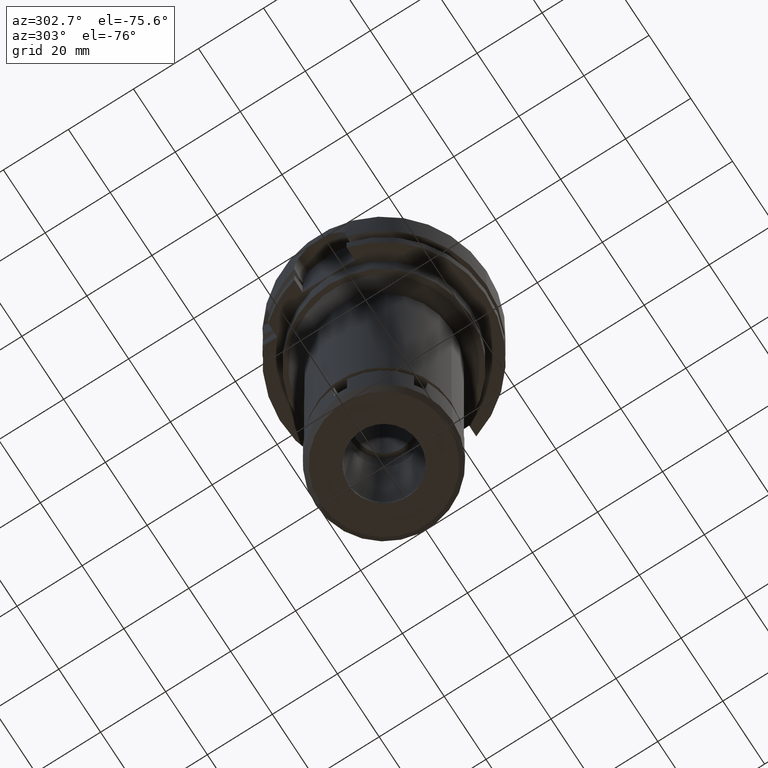
[diagram: clean part render]
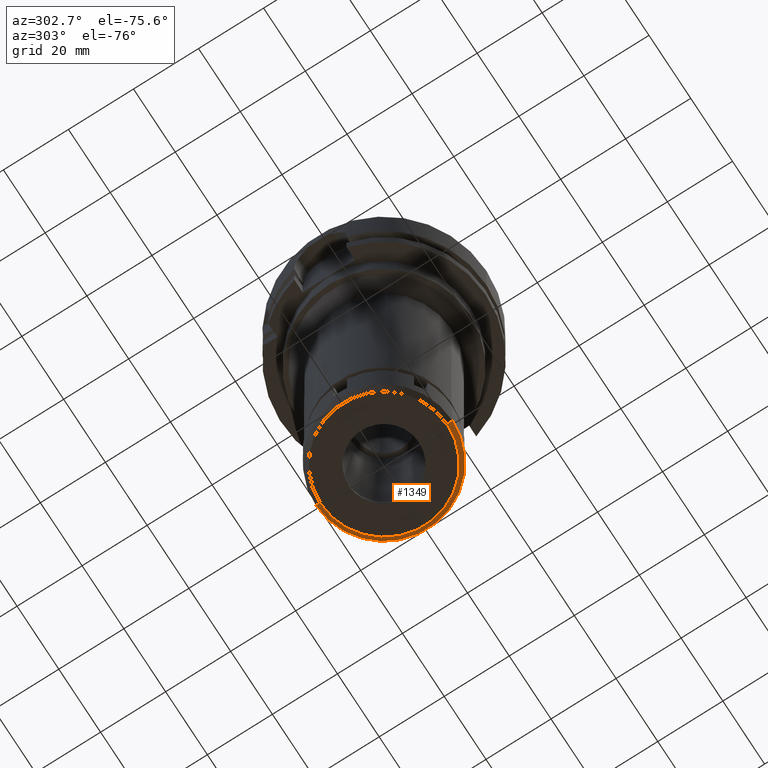
[diagram: same view with one face highlighted and labeled with its STEP entity id]
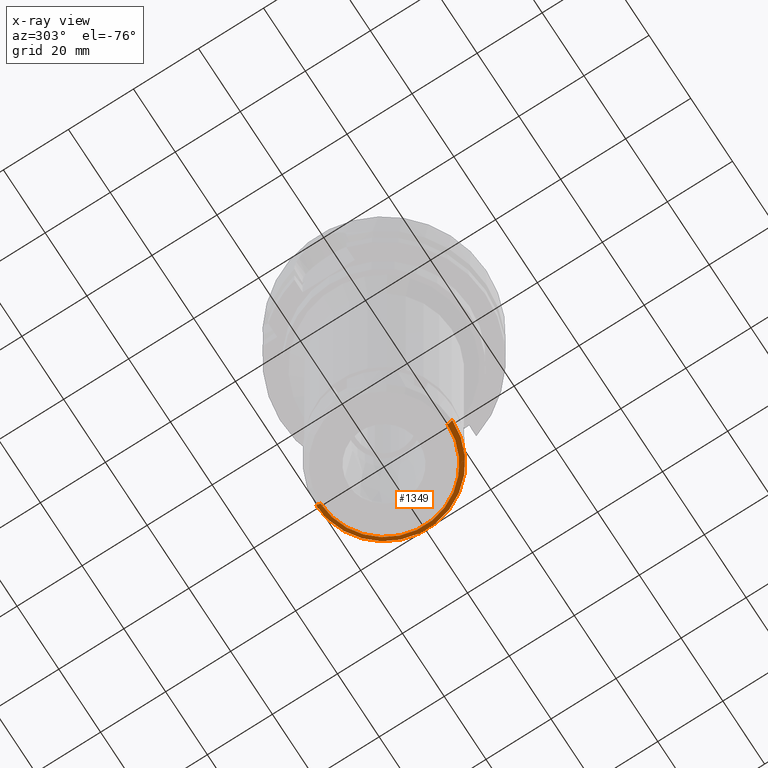
[diagram: x-ray of the same camera — body ghosted, the highlighted face saturated]
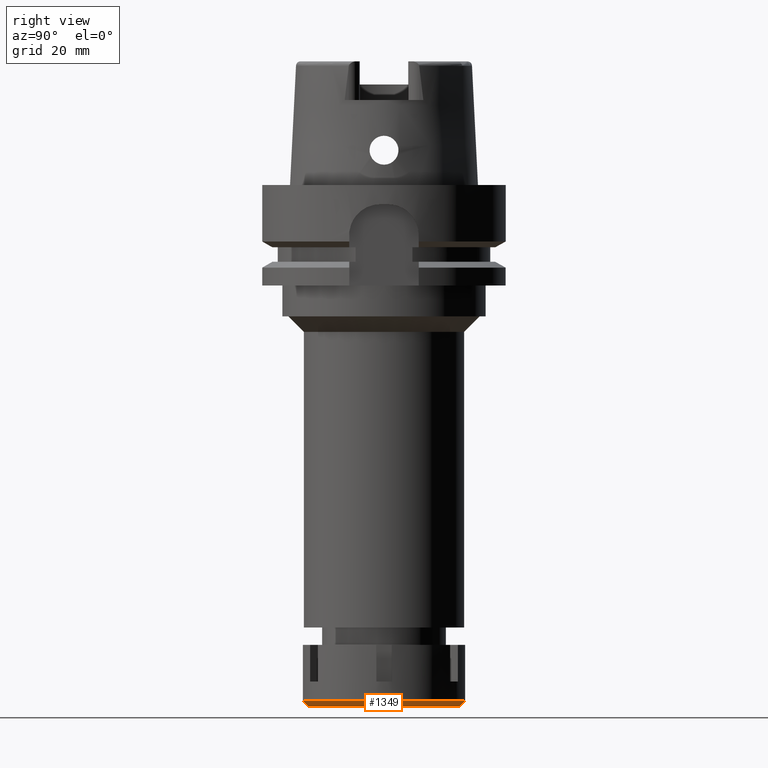
[diagram: same view with one face highlighted and labeled with its STEP entity id]
A machine part, auxiliary view. The second image highlights one B-rep face of the part: STEP entity #1349.
The next image is the same camera in x-ray: the body ghosted, the highlighted face saturated — about 0% of this face is hidden behind the body in this view.
A second angle (right view) of the same face is appended — the face is thin or edge-on in the first view.
In plain terms, the highlighted conical surface has half-angle 45 deg.
Its self-contained STEP definition (entity closure, byte-faithful):
#74 = DIRECTION ( 'NONE',  ( 0.0000000000000000000, 0.0000000000000000000, 1.000000000000000000 ) ) ;
#103 = CIRCLE ( 'NONE', #592, 21.00000000000000000 ) ;
#455 = DIRECTION ( 'NONE',  ( 0.0000000000000000000, 0.0000000000000000000, 1.000000000000000000 ) ) ;
#592 = AXIS2_PLACEMENT_3D ( 'NONE', #3850, #74, #3820 ) ;
#685 = ORIENTED_EDGE ( 'NONE', *, *, #3351, .F. ) ;
#931 = ORIENTED_EDGE ( 'NONE', *, *, #5688, .F. ) ;
#940 = DIRECTION ( 'NONE',  ( 0.0000000000000000000, 0.0000000000000000000, 1.000000000000000000 ) ) ;
#1349 = ADVANCED_FACE ( 'NONE', ( #2920 ), #2790, .T. ) ;
#1442 = CIRCLE ( 'NONE', #3600, 19.50000000000000000 ) ;
#1630 = VECTOR ( 'NONE', #2127, 1000.000000000000114 ) ;
#1882 = DIRECTION ( 'NONE',  ( 0.0000000000000000000, 1.000000000000000000, 0.0000000000000000000 ) ) ;
#2067 = VERTEX_POINT ( 'NONE', #2455 ) ;
#2127 = DIRECTION ( 'NONE',  ( 0.0000000000000000000, -0.7071067811865474617, -0.7071067811865474617 ) ) ;
#2261 = CARTESIAN_POINT ( 'NONE',  ( 0.0000000000000000000, -19.50000000000000000, -16.00000000000000000 ) ) ;
#2455 = CARTESIAN_POINT ( 'NONE',  ( 0.0000000000000000000, -21.00000000000000000, -14.50000000000000000 ) ) ;
#2541 = CARTESIAN_POINT ( 'NONE',  ( 0.0000000000000000000, -21.00000000000000000, -14.50000000000000000 ) ) ;
#2790 = CONICAL_SURFACE ( 'NONE', #5151, 20.25000000000000000, 0.7853981633972997312 ) ;
#2920 = FACE_OUTER_BOUND ( 'NONE', #4051, .T. ) ;
#3351 = EDGE_CURVE ( 'NONE', #3498, #4011, #3536, .T. ) ;
#3472 = CARTESIAN_POINT ( 'NONE',  ( 0.0000000000000000000, 21.00000000000000000, -14.50000000000000000 ) ) ;
#3498 = VERTEX_POINT ( 'NONE', #3472 ) ;
#3528 = ORIENTED_EDGE ( 'NONE', *, *, #3846, .T. ) ;
#3536 = LINE ( 'NONE', #3904, #1630 ) ;
#3585 = DIRECTION ( 'NONE',  ( 0.0000000000000000000, 0.7071067811865474617, -0.7071067811865474617 ) ) ;
#3600 = AXIS2_PLACEMENT_3D ( 'NONE', #5602, #455, #4768 ) ;
#3820 = DIRECTION ( 'NONE',  ( 0.0000000000000000000, -1.000000000000000000, 0.0000000000000000000 ) ) ;
#3846 = EDGE_CURVE ( 'NONE', #5382, #4011, #1442, .T. ) ;
#3850 = CARTESIAN_POINT ( 'NONE',  ( 0.0000000000000000000, 0.0000000000000000000, -14.50000000000000000 ) ) ;
#3904 = CARTESIAN_POINT ( 'NONE',  ( 0.0000000000000000000, 21.00000000000000000, -14.50000000000000000 ) ) ;
#4011 = VERTEX_POINT ( 'NONE', #4830 ) ;
#4051 = EDGE_LOOP ( 'NONE', ( #931, #5849, #3528, #685 ) ) ;
#4556 = LINE ( 'NONE', #2541, #4679 ) ;
#4679 = VECTOR ( 'NONE', #3585, 1000.000000000000114 ) ;
#4768 = DIRECTION ( 'NONE',  ( 0.0000000000000000000, -1.000000000000000000, 0.0000000000000000000 ) ) ;
#4830 = CARTESIAN_POINT ( 'NONE',  ( 0.0000000000000000000, 19.50000000000000000, -16.00000000000000000 ) ) ;
#5151 = AXIS2_PLACEMENT_3D ( 'NONE', #5610, #940, #1882 ) ;
#5167 = EDGE_CURVE ( 'NONE', #2067, #5382, #4556, .T. ) ;
#5382 = VERTEX_POINT ( 'NONE', #2261 ) ;
#5602 = CARTESIAN_POINT ( 'NONE',  ( 0.0000000000000000000, 0.0000000000000000000, -16.00000000000000000 ) ) ;
#5610 = CARTESIAN_POINT ( 'NONE',  ( 0.0000000000000000000, 0.0000000000000000000, -15.25000000000000000 ) ) ;
#5688 = EDGE_CURVE ( 'NONE', #2067, #3498, #103, .T. ) ;
#5849 = ORIENTED_EDGE ( 'NONE', *, *, #5167, .T. ) ;